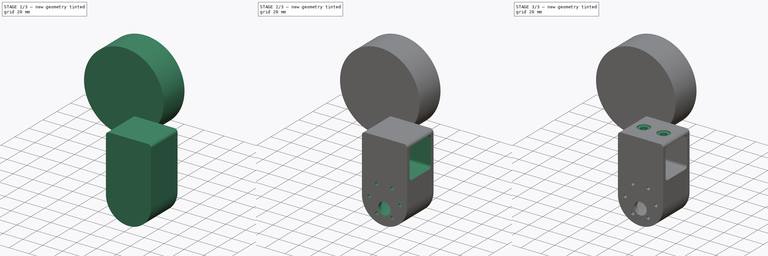
[diagram: build sequence overview — one tinted view per stage of 3, left to right]
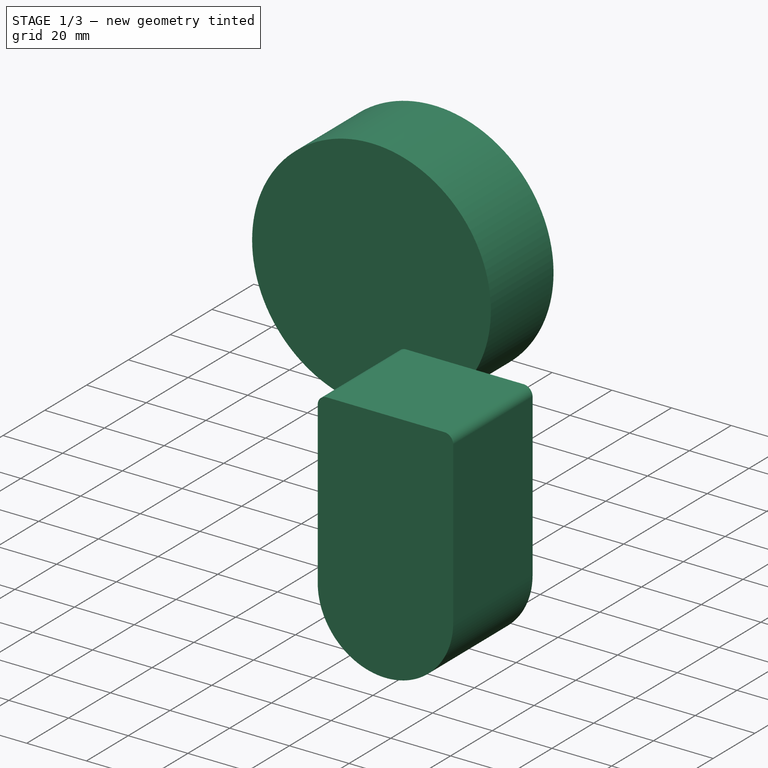
[diagram: stage 1 of 3 — iso view after this stage's code; geometry added in this stage tinted green]
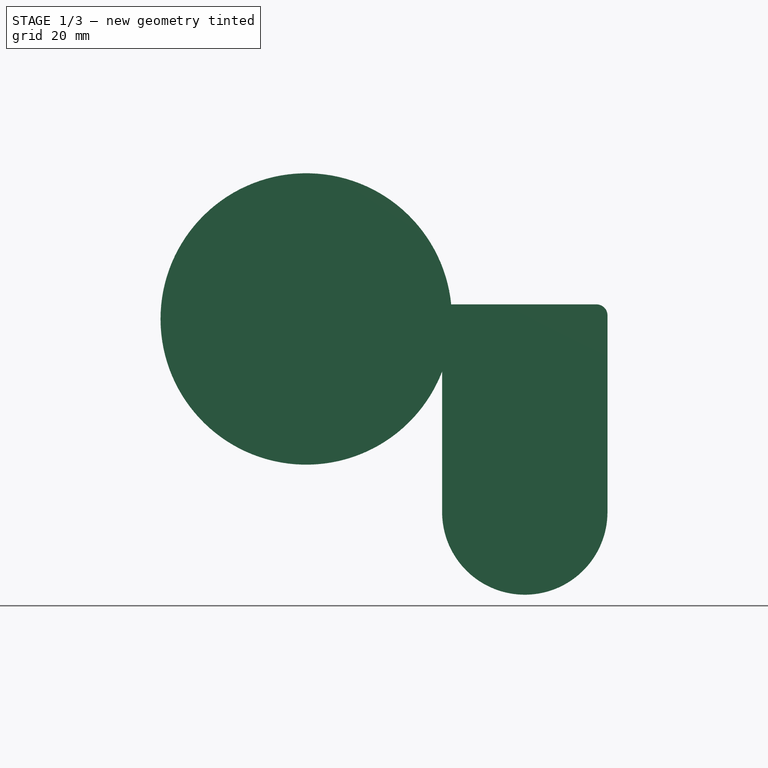
[diagram: stage 1 of 3 — front view after this stage's code; geometry added in this stage tinted green]
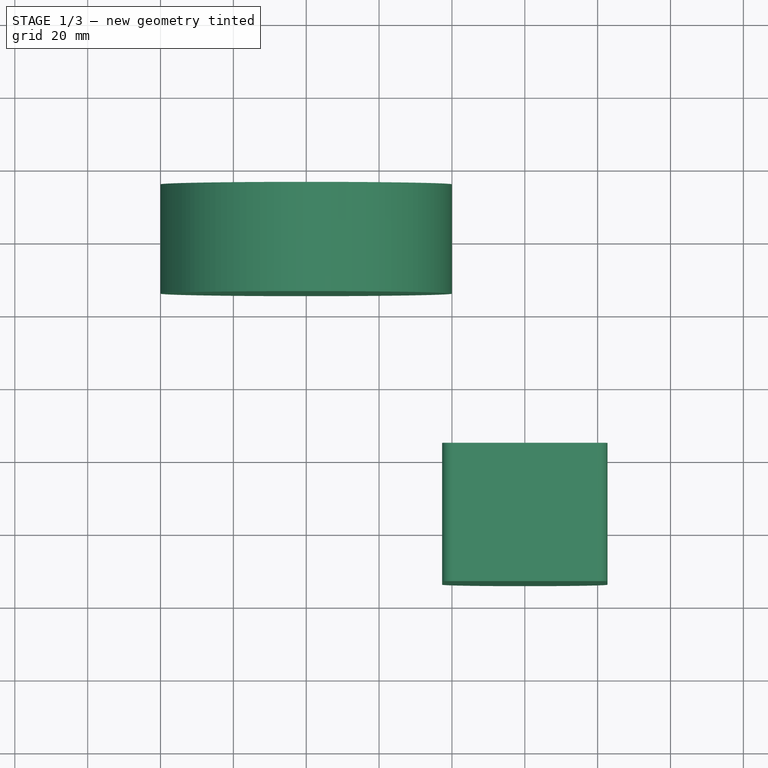
[diagram: stage 1 of 3 — top view after this stage's code; geometry added in this stage tinted green]
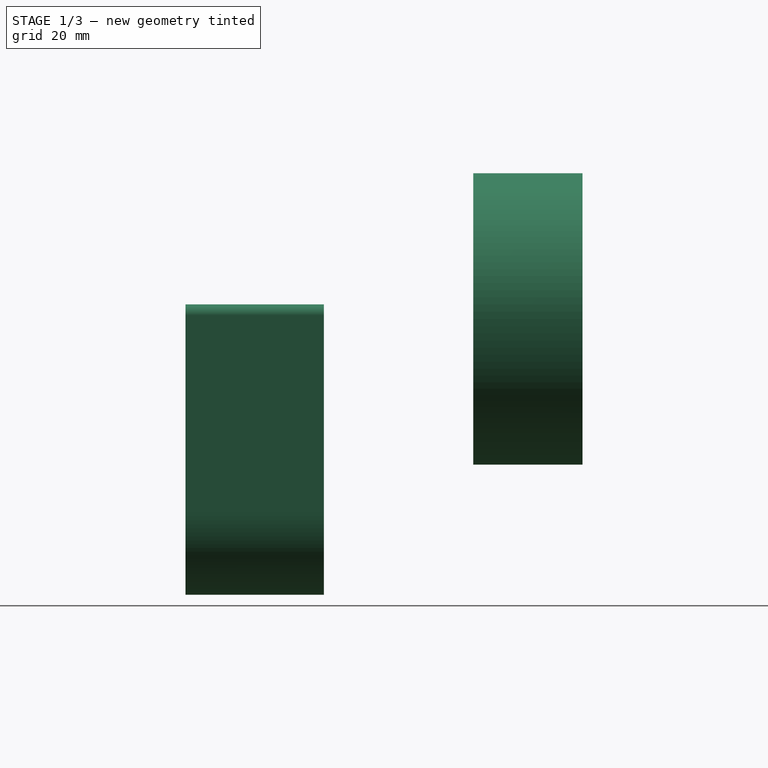
[diagram: stage 1 of 3 — right view after this stage's code; geometry added in this stage tinted green]
FCSTD DOCUMENT  (FreeCAD 1.0R39319 (Git))
Label: b2bb_assembly
License: All rights reserved
LicenseURL: https://en.wikipedia.org/wiki/All_rights_reserved
objects: Sketcher::SketchObject×7, Part::Feature×6, PartDesign::Pocket×5, PartDesign::Body×3, App::Part×2, PartDesign::Pad×2
note: 44 computed .brp shape members not serialized (recipe doc carries the construction recipe); baked Part::Feature solids carry a one-line shape summary decoded from their .brp

FEATURE [PartDesign::Body] Body
  AllowCompound = false
  Origin = -> Origin
FEATURE [Part::Feature] Part__Feature  label="SOLID"
  shape: bbox 30 x 100 x 30 mm, 99 faces (baked)
FEATURE [App::Part] Sea_and_See_v2  label="3030_left"
  Group = -> [Part__Feature]
  Origin = -> Origin001
  Placement = pos=(0,90,-30) rot=(0,0,-1;1.5708rad)
FEATURE [Part::Feature] Part__Feature001  label="SOLID001"
  shape: bbox 30 x 100 x 30 mm, 99 faces (baked)
FEATURE [App::Part] Sea_and_See_v003  label="3030_right"
  Group = -> [Part__Feature001]
  Origin = -> Origin002
  Placement = pos=(0,-60,-30) rot=(0,0,-1;1.5708rad)
FEATURE [Part::Feature] Part__Feature002  label="motor_right"
  Placement = pos=(40,-70,-53) rot=(1,0,0;1.5708rad)
  shape: bbox 37.67 x 94.6 x 41.66 mm, 649 faces (baked)
FEATURE [Part::Feature] Part__Feature003  label="motor_left"
  Placement = pos=(80,70,-53) rot=(0,0.707107,0.707107;3.14159rad)
  shape: bbox 37.67 x 94.6 x 41.66 mm, 649 faces (baked)
FEATURE [Sketcher::SketchObject] Sketch
  ArcFitTolerance = 1e-06
  AttachmentSupport = -> [XZ_Plane003]
  FullyConstrained = true
  MakeInternals = false
  MapMode = 5
  Placement = pos=(0,0,0) rot=(1,0,0;1.5708rad)
  sketch-geometry (7):
    g0: LineSegment StartX=37.3 StartY=1 StartZ=0 EndX=37.3 EndY=-53 EndZ=0
    g1: LineSegment StartX=82.7 StartY=-53 StartZ=0 EndX=82.7 EndY=1 EndZ=0
    g2: LineSegment StartX=79.7 StartY=4 StartZ=0 EndX=40.3 EndY=4 EndZ=0
    g3: ArcOfCircle CenterX=40.3 CenterY=1 CenterZ=0 NormalX=0 NormalY=0 NormalZ=1 AngleXU=0 Radius=3 StartAngle=1.5708 EndAngle=3.14159
    g4: ArcOfCircle CenterX=79.7 CenterY=1 CenterZ=0 NormalX=0 NormalY=0 NormalZ=1 AngleXU=0 Radius=3 StartAngle=0 EndAngle=1.5708
    g5: GeomPoint [constr] X=37.3 Y=4 Z=0
    g6: ArcOfCircle CenterX=60 CenterY=-53 CenterZ=0 NormalX=0 NormalY=0 NormalZ=1 AngleXU=0 Radius=22.7 StartAngle=3.14159 EndAngle=6.28319
  constraints (19):
    c: Tangent(g0,g3) = -1.5708
    c: Tangent(g1,g4) = -1.5708
    c: Tangent(g2,g4) = -1.5708
    c: Tangent(g2,g3) = -1.5708
    c: Vertical(g0)
    c: Vertical(g1)
    c: Horizontal(g2)
    c: PointOnObject(g5,g0)
    c: PointOnObject(g5,g2)
    c: Radius(g4) = 3
    c: Horizontal(g0,g1)
    c: Distance(g2) = 39.4
    c: Equal(g3,g4)
    c: DistanceY(g-1,g2) = 4
    c: Coincident(g6,g0)
    c: Coincident(g6,g1)
    c: Horizontal(g0,g6)
    c: DistanceY(g6,g-1) = 53
    c: DistanceX(g-1,g6) = 60
FEATURE [PartDesign::Pad] Pad  label="motor_holder_body"
  Direction = (0,-1,2e-16)
  Length = 94
  Length2 = -56
  Placement = pos=(0,0,0) rot=(1,0,0;1.5708rad)
  Profile = -> Sketch
  ReferenceAxis = -> Sketch [N_Axis]
  Refine = true
  Suppressed = false
  Type = 4
FEATURE [PartDesign::Body] Body001  label="MotorHolder"
  AllowCompound = false
  Group = -> [Sketch,Pad,Sketch001,Pocket,Sketch002,Pocket001,Sketch003,Pocket002,Sketch004,Pocket003,Sketch005,Pocket004]
  Origin = -> Origin003
  Tip = -> Pocket004
FEATURE [Part::Feature] Part__Feature004  label="coupler_right"
  Placement = pos=(60,-115,-60) rot=(0,0,1;0rad)
  shape: bbox 15.75 x 18.25 x 15.75 mm, 67 faces (baked)
FEATURE [Part::Feature] Part__Feature005  label="coupler_left"
  Placement = pos=(60,115,-60) rot=(0,0,1;3.14159rad)
  shape: bbox 15.75 x 18.25 x 15.75 mm, 67 faces (baked)
FEATURE [Sketcher::SketchObject] Sketch006
  ArcFitTolerance = 1e-06
  AttachmentSupport = -> [XZ_Plane004]
  FullyConstrained = true
  MakeInternals = false
  MapMode = 5
  Placement = pos=(0,0,0) rot=(1,0,0;1.5708rad)
  sketch-geometry (1):
    g0: Circle CenterX=0 CenterY=0 CenterZ=0 NormalX=0 NormalY=0 NormalZ=1 AngleXU=0 Radius=40
  constraints (2):
    c: Coincident(g0,g-1)
    c: Diameter(g0) = 80
FEATURE [PartDesign::Pad] Pad001
  Direction = (0,-1,2e-16)
  Length = 15
  Length2 = 15
  Placement = pos=(0,0,0) rot=(1,0,0;1.5708rad)
  Profile = -> Sketch006
  ReferenceAxis = -> Sketch006 [N_Axis]
  Refine = true
  Suppressed = false
  Type = 4
FEATURE [PartDesign::Body] Body002  label="Rim"
  AllowCompound = false
  Group = -> [Sketch006,Pad001]
  Origin = -> Origin004
  Placement = pos=(60,-115,-60) rot=(0,0,1;0rad)
  Tip = -> Pad001
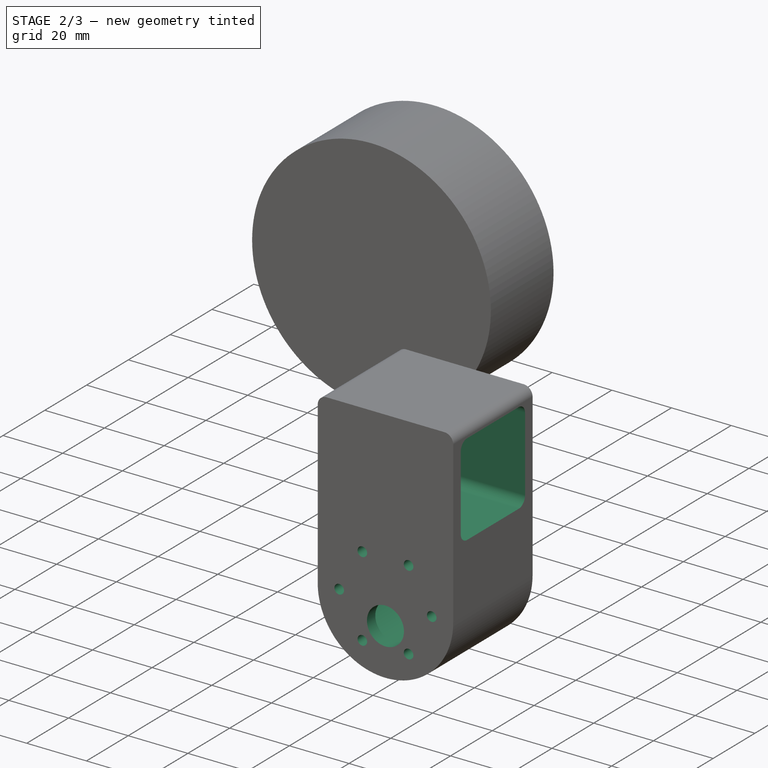
[diagram: stage 2 of 3 — iso view after this stage's code; geometry added in this stage tinted green]
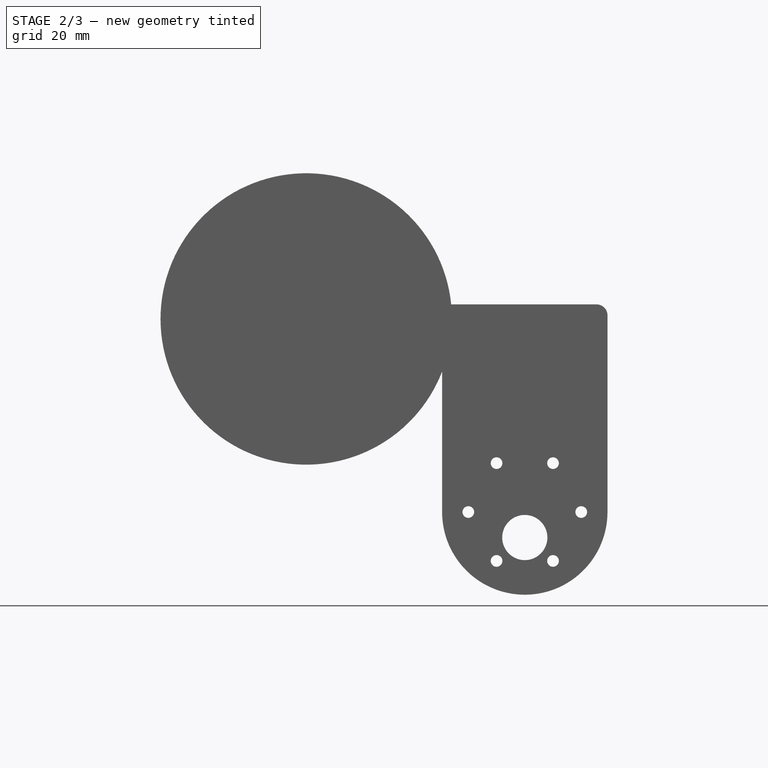
[diagram: stage 2 of 3 — front view after this stage's code; geometry added in this stage tinted green]
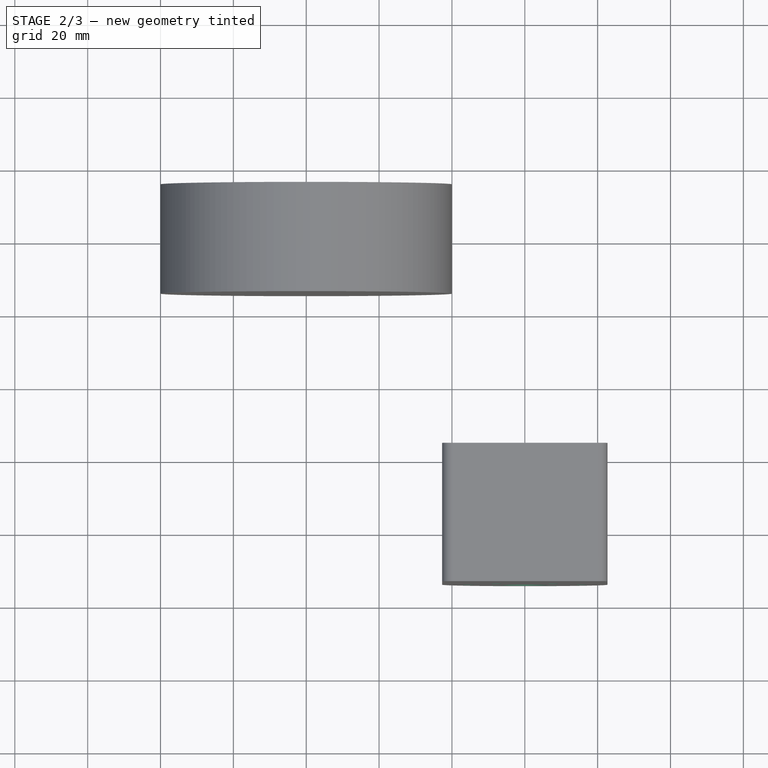
[diagram: stage 2 of 3 — top view after this stage's code; geometry added in this stage tinted green]
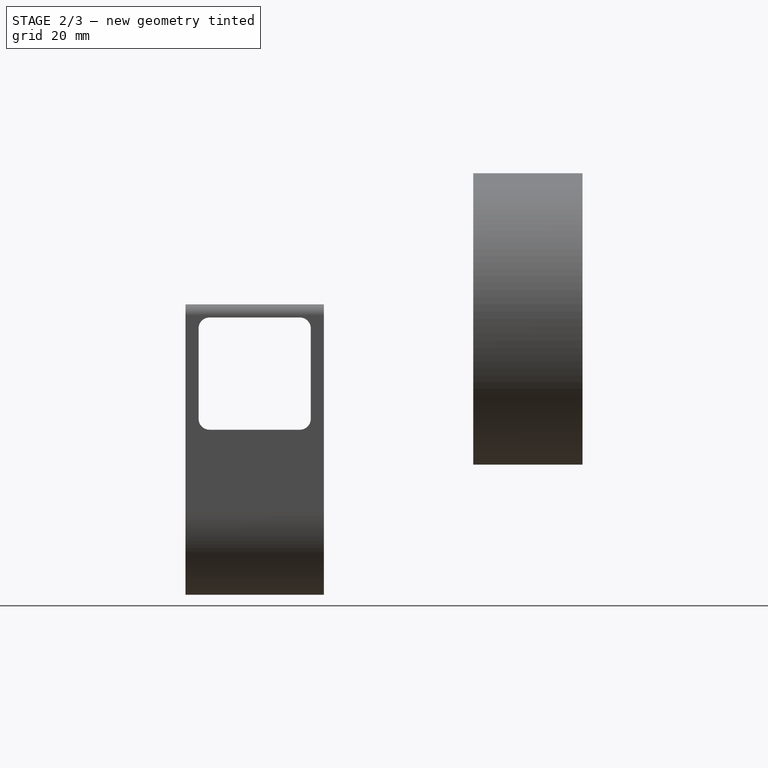
[diagram: stage 2 of 3 — right view after this stage's code; geometry added in this stage tinted green]
FEATURE [Sketcher::SketchObject] Sketch001
  ArcFitTolerance = 1e-06
  AttachmentSupport = -> [Pad]
  FullyConstrained = true
  MakeInternals = false
  MapMode = 5
  Placement = pos=(0,-56,0) rot=(-1,0,0;1.5708rad)
  sketch-geometry (1):
    g0: Circle CenterX=60 CenterY=53 CenterZ=0 NormalX=0 NormalY=0 NormalZ=1 AngleXU=0 Radius=18.7
  constraints (3):
    c: Diameter(g0) = 37.4
    c: DistanceY(g-1,g0) = 53
    c: DistanceX(g-1,g0) = 60
FEATURE [PartDesign::Pocket] Pocket  label="motor_pocket"
  BaseFeature = -> Pad
  Direction = (0,-1,-2e-16)
  Length = 34
  Length2 = 5
  Placement = pos=(0,0,0) rot=(1,0,0;1.5708rad)
  Profile = -> Sketch001
  ReferenceAxis = -> Sketch001 [N_Axis]
  Refine = true
  Suppressed = false
  Type = 0
FEATURE [Sketcher::SketchObject] Sketch002
  ArcFitTolerance = 1e-06
  AttachmentSupport = -> [Pocket]
  FullyConstrained = true
  MakeInternals = false
  MapMode = 5
  Placement = pos=(0,-94,0) rot=(1,0,0;1.5708rad)
  sketch-geometry (14):
    g0: Circle CenterX=60 CenterY=-60 CenterZ=0 NormalX=0 NormalY=0 NormalZ=1 AngleXU=0 Radius=6.2
    g1: LineSegment [constr] StartX=75.5 StartY=-53 StartZ=0 EndX=67.75 EndY=-39.5766 EndZ=0
    g2: LineSegment [constr] StartX=67.75 StartY=-39.5766 StartZ=0 EndX=52.25 EndY=-39.5766 EndZ=0
    g3: LineSegment [constr] StartX=52.25 StartY=-39.5766 StartZ=0 EndX=44.5 EndY=-53 EndZ=0
    g4: LineSegment [constr] StartX=44.5 StartY=-53 StartZ=0 EndX=52.25 EndY=-66.4234 EndZ=0
    g5: LineSegment [constr] StartX=52.25 StartY=-66.4234 StartZ=0 EndX=67.75 EndY=-66.4234 EndZ=0
    g6: LineSegment [constr] StartX=67.75 StartY=-66.4234 StartZ=0 EndX=75.5 EndY=-53 EndZ=0
    g7: Circle [constr] CenterX=60 CenterY=-53 CenterZ=0 NormalX=0 NormalY=0 NormalZ=1 AngleXU=0 Radius=15.5
    g8: Circle CenterX=52.25 CenterY=-39.5766 CenterZ=0 NormalX=0 NormalY=0 NormalZ=1 AngleXU=0 Radius=1.6
    g9: Circle CenterX=67.75 CenterY=-39.5766 CenterZ=0 NormalX=0 NormalY=0 NormalZ=1 AngleXU=0 Radius=1.6
    g10: Circle CenterX=75.5 CenterY=-53 CenterZ=0 NormalX=0 NormalY=0 NormalZ=1 AngleXU=0 Radius=1.6
    g11: Circle CenterX=67.75 CenterY=-66.4234 CenterZ=0 NormalX=0 NormalY=0 NormalZ=1 AngleXU=0 Radius=1.6
    g12: Circle CenterX=52.25 CenterY=-66.4234 CenterZ=0 NormalX=0 NormalY=0 NormalZ=1 AngleXU=0 Radius=1.6
    g13: Circle CenterX=44.5 CenterY=-53 CenterZ=0 NormalX=0 NormalY=0 NormalZ=1 AngleXU=0 Radius=1.6
  constraints (32):
    c: Coincident(g1,g2)
    c: Coincident(g2,g3)
    c: Coincident(g3,g4)
    c: Coincident(g4,g5)
    c: Coincident(g5,g6)
    c: Coincident(g6,g1)
    c: Equal(g1, g2-g6) x5
    c: PointOnObject(g1,g7)
    c: PointOnObject(g2,g7)
    c: PointOnObject(g3,g7)
    c: PointOnObject(g4,g7)
    c: PointOnObject(g5,g7)
    c: PointOnObject(g6,g7)
    c: Diameter(g7) = 31
    c: DistanceX(g-1,g0) = 60
    c: DistanceY(g0,g-1) = 60
    c: Horizontal(g3,g1)
    c: Diameter(g0) = 12.4
    c: Vertical(g7,g0)
    c: DistanceY(g0,g7) = 7
    c: Coincident(g8,g2)
    c: Coincident(g9,g1)
    c: Coincident(g10,g1)
    c: Coincident(g11,g5)
    c: Coincident(g12,g4)
    c: Coincident(g13,g3)
    c: Equal(g13,g8)
    c: Equal(g8,g9)
    c: Equal(g9,g10)
    c: Equal(g10,g11)
    c: Equal(g11,g12)
    c: Diameter(g12) = 3.2
FEATURE [PartDesign::Pocket] Pocket001  label="motor_mount_holes"
  BaseFeature = -> Pocket
  Direction = (0,1,-2e-16)
  Length = 5
  Length2 = 5
  Placement = pos=(0,0,0) rot=(1,0,0;1.5708rad)
  Profile = -> Sketch002
  ReferenceAxis = -> Sketch002 [N_Axis]
  Refine = true
  Suppressed = false
  Type = 2
FEATURE [Sketcher::SketchObject] Sketch003
  ArcFitTolerance = 1e-06
  AttachmentSupport = -> [Pocket001]
  FullyConstrained = true
  MakeInternals = false
  MapMode = 5
  Placement = pos=(82.7,0,0) rot=(0.707107,0,0.707107;3.14159rad)
  sketch-geometry (10):
    g0: LineSegment StartX=-30.4 StartY=87.4 StartZ=0 EndX=-30.4 EndY=62.6 EndZ=0
    g1: LineSegment StartX=-27.4 StartY=59.6 StartZ=0 EndX=-2.6 EndY=59.6 EndZ=0
    g2: LineSegment StartX=0.4 StartY=62.6 StartZ=0 EndX=0.4 EndY=87.4 EndZ=0
    g3: LineSegment StartX=-2.6 StartY=90.4 StartZ=0 EndX=-27.4 EndY=90.4 EndZ=0
    g4: ArcOfCircle CenterX=-27.4 CenterY=87.4 CenterZ=0 NormalX=0 NormalY=0 NormalZ=1 AngleXU=0 Radius=3 StartAngle=1.5708 EndAngle=3.14159
    g5: ArcOfCircle CenterX=-27.4 CenterY=62.6 CenterZ=0 NormalX=0 NormalY=0 NormalZ=1 AngleXU=0 Radius=3 StartAngle=3.14159 EndAngle=4.71239
    g6: ArcOfCircle CenterX=-2.6 CenterY=62.6 CenterZ=0 NormalX=0 NormalY=0 NormalZ=1 AngleXU=0 Radius=3 StartAngle=4.71239 EndAngle=6.28319
    g7: ArcOfCircle CenterX=-2.6 CenterY=87.4 CenterZ=0 NormalX=0 NormalY=0 NormalZ=1 AngleXU=0 Radius=3 StartAngle=-1.8e-15 EndAngle=1.5708
    g8: GeomPoint [constr] X=-30.4 Y=90.4 Z=0
    g9: GeomPoint [constr] X=0.4 Y=59.6 Z=0
  constraints (24):
    c: Tangent(g0,g4) = -1.5708
    c: Tangent(g0,g5) = -1.5708
    c: Tangent(g1,g5) = -1.5708
    c: Tangent(g1,g6) = -1.5708
    c: Tangent(g2,g6) = -1.5708
    c: Tangent(g2,g7) = -1.5708
    c: Tangent(g3,g7) = -1.5708
    c: Tangent(g3,g4) = -1.5708
    c: Vertical(g0)
    c: Vertical(g2)
    c: Horizontal(g1)
    c: Horizontal(g3)
    c: Equal(g4,g5)
    c: Equal(g5,g6)
    c: Equal(g6,g7)
    c: PointOnObject(g8,g0)
    c: PointOnObject(g8,g3)
    c: PointOnObject(g9,g1)
    c: PointOnObject(g9,g2)
    c: Radius(g5) = 3
    c: Distance(g1) = 24.8
    c: Distance(g2) = 24.8
    c: DistanceY(g-1,g1) = 59.6
    c: DistanceX(g1,g-1) = 2.6
FEATURE [PartDesign::Pocket] Pocket002  label="profile_hole"
  BaseFeature = -> Pocket001
  Direction = (-1,0,2e-16)
  Length = 5
  Length2 = 5
  Placement = pos=(0,0,0) rot=(1,0,0;1.5708rad)
  Profile = -> Sketch003
  ReferenceAxis = -> Sketch003 [N_Axis]
  Refine = true
  Suppressed = false
  Type = 1
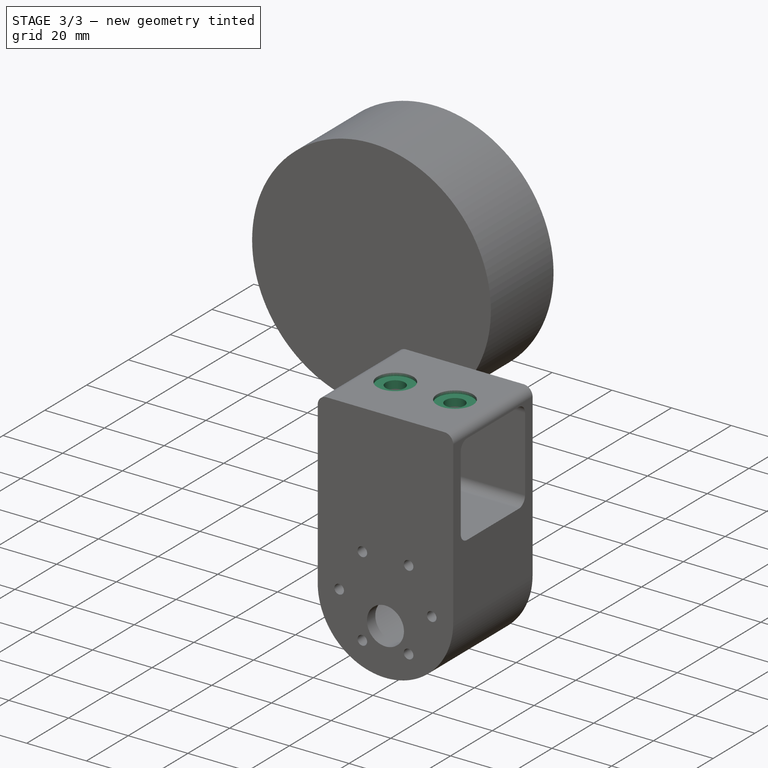
[diagram: stage 3 of 3 — iso view after this stage's code; geometry added in this stage tinted green]
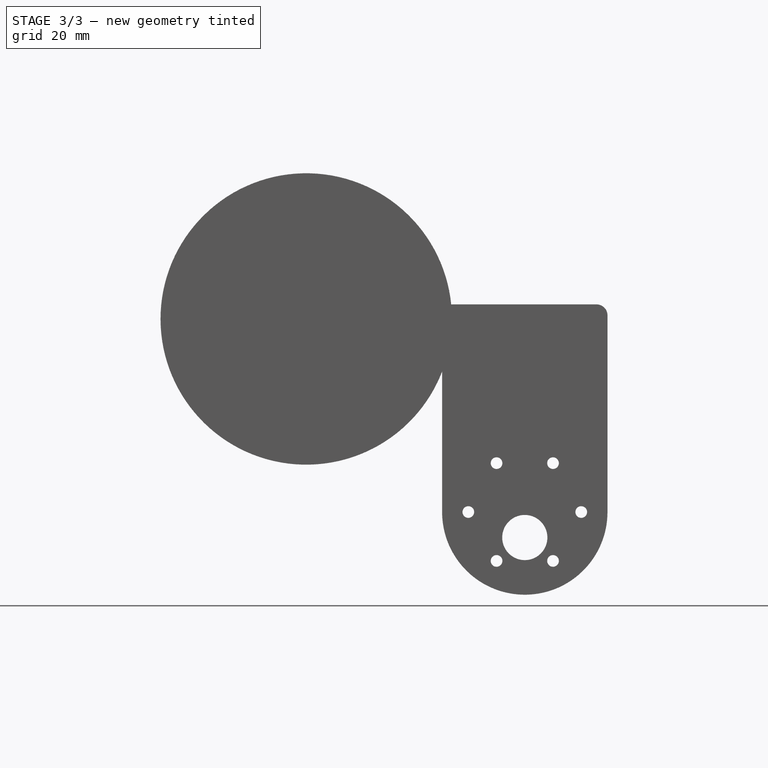
[diagram: stage 3 of 3 — front view after this stage's code; geometry added in this stage tinted green]
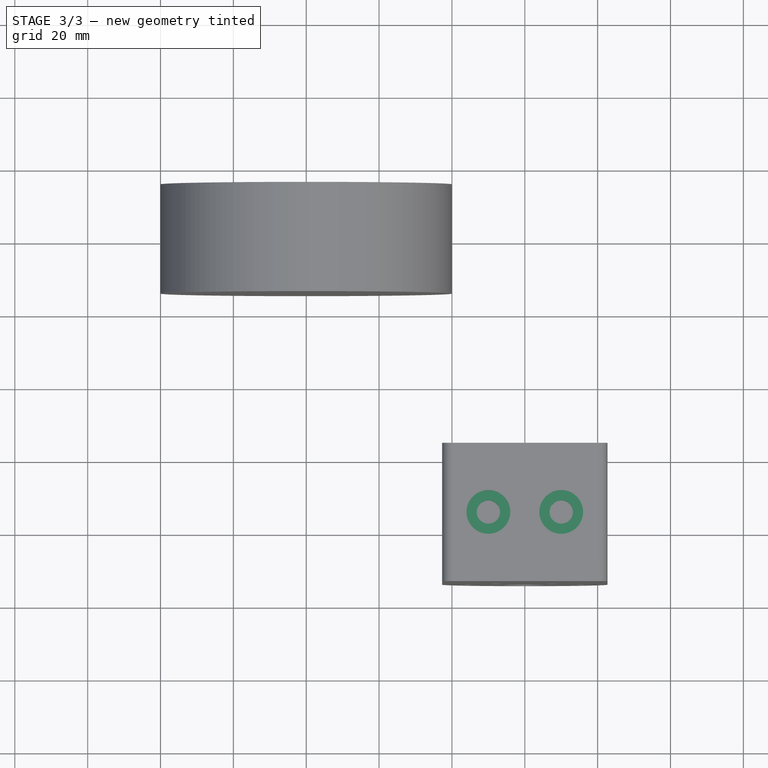
[diagram: stage 3 of 3 — top view after this stage's code; geometry added in this stage tinted green]
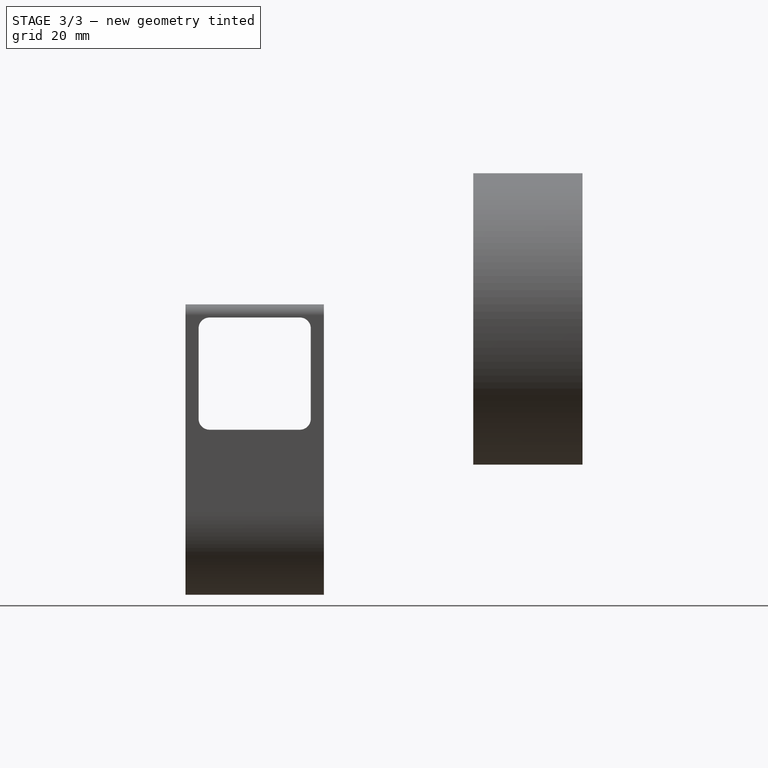
[diagram: stage 3 of 3 — right view after this stage's code; geometry added in this stage tinted green]
FEATURE [Sketcher::SketchObject] Sketch004
  ArcFitTolerance = 1e-06
  AttachmentSupport = -> [Pocket002]
  FullyConstrained = true
  MakeInternals = false
  MapMode = 5
  Placement = pos=(0,1.8e-15,4) rot=(0,0,1;3.14159rad)
  sketch-geometry (2):
    g0: Circle CenterX=-70 CenterY=75 CenterZ=0 NormalX=0 NormalY=0 NormalZ=1 AngleXU=0 Radius=3.2
    g1: Circle CenterX=-50 CenterY=75 CenterZ=0 NormalX=0 NormalY=0 NormalZ=1 AngleXU=0 Radius=3.2
  constraints (6):
    c: Equal(g0,g1)
    c: Diameter(g1) = 6.4
    c: Horizontal(g1,g0)
    c: DistanceX(g0,g1) = 20
    c: DistanceX(g1,g-1) = 50
    c: DistanceY(g-1,g1) = 75
FEATURE [PartDesign::Pocket] Pocket003  label="fastener_screw_holes"
  BaseFeature = -> Pocket002
  Direction = (0,0,-1)
  Length = 5
  Length2 = 5
  Placement = pos=(0,0,0) rot=(1,0,0;1.5708rad)
  Profile = -> Sketch004
  ReferenceAxis = -> Sketch004 [N_Axis]
  Refine = true
  Suppressed = false
  Type = 2
FEATURE [Sketcher::SketchObject] Sketch005
  ArcFitTolerance = 1e-06
  AttachmentSupport = -> [Pocket003]
  FullyConstrained = true
  MakeInternals = false
  MapMode = 5
  Placement = pos=(0,1.8e-15,4) rot=(0,0,1;3.14159rad)
  sketch-geometry (2):
    g0: Circle CenterX=-70 CenterY=75 CenterZ=0 NormalX=0 NormalY=0 NormalZ=1 AngleXU=0 Radius=6
    g1: Circle CenterX=-50 CenterY=75 CenterZ=0 NormalX=0 NormalY=0 NormalZ=1 AngleXU=0 Radius=6
  constraints (6):
    c: Equal(g1,g0)
    c: Diameter(g1) = 12
    c: Horizontal(g1,g0)
    c: DistanceX(g0,g1) = 20
    c: DistanceX(g1,g-1) = 50
    c: DistanceY(g-1,g1) = 75
FEATURE [PartDesign::Pocket] Pocket004  label="fastener_screw_pockets"
  BaseFeature = -> Pocket003
  Direction = (0,0,-1)
  Length = 1
  Length2 = 5
  Placement = pos=(0,0,0) rot=(1,0,0;1.5708rad)
  Profile = -> Sketch005
  ReferenceAxis = -> Sketch005 [N_Axis]
  Refine = true
  Suppressed = false
  Type = 0
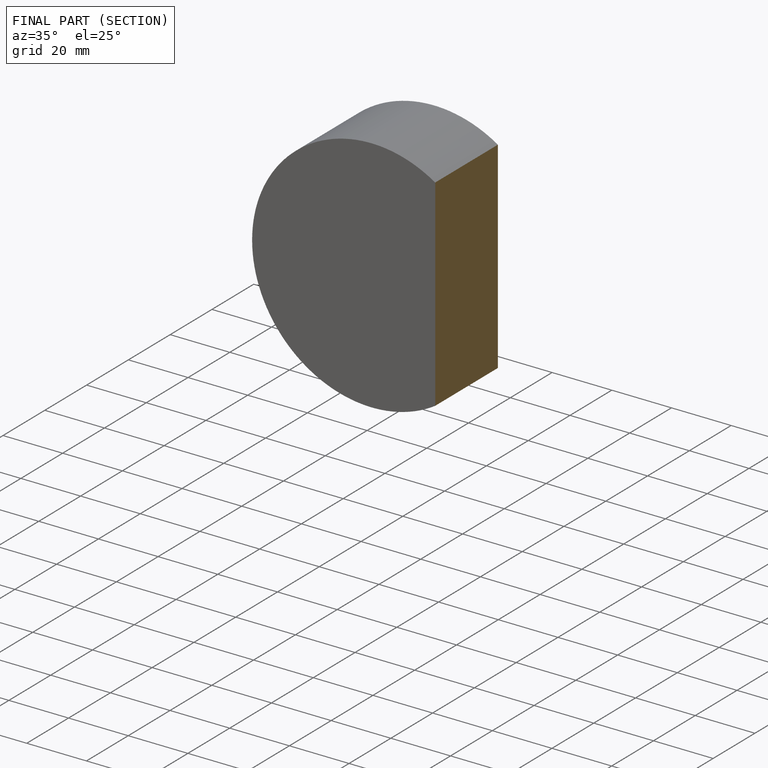
[diagram: finished part — half-section view (interior)]
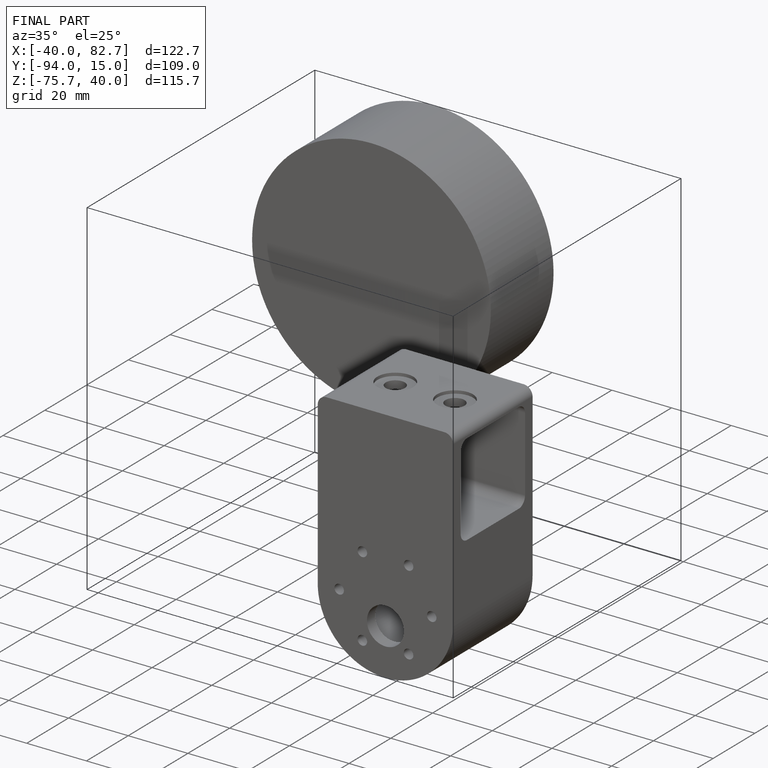
[diagram: finished part — iso view with bounding-box wireframe]
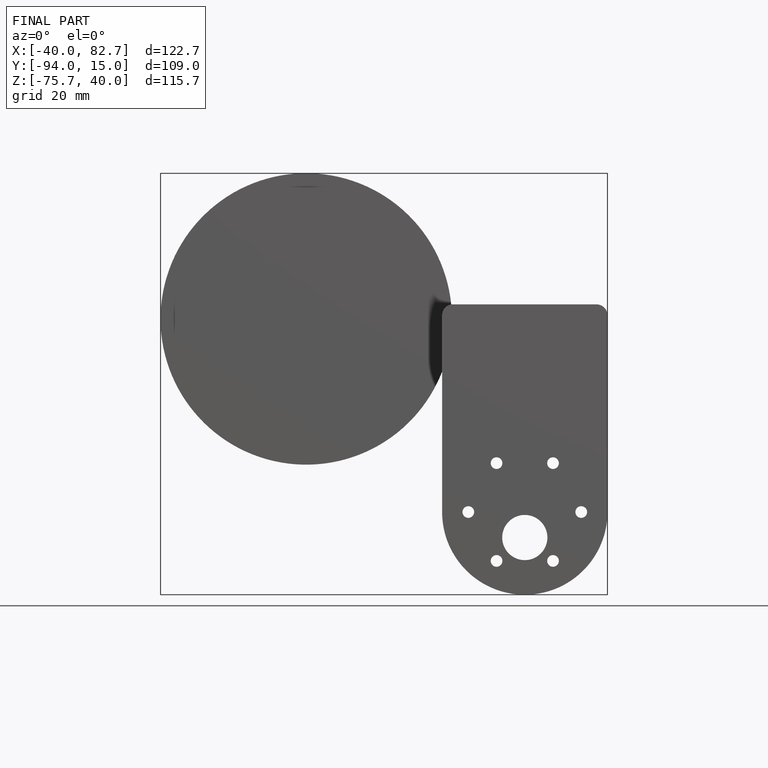
[diagram: finished part — front view with bounding-box wireframe]
